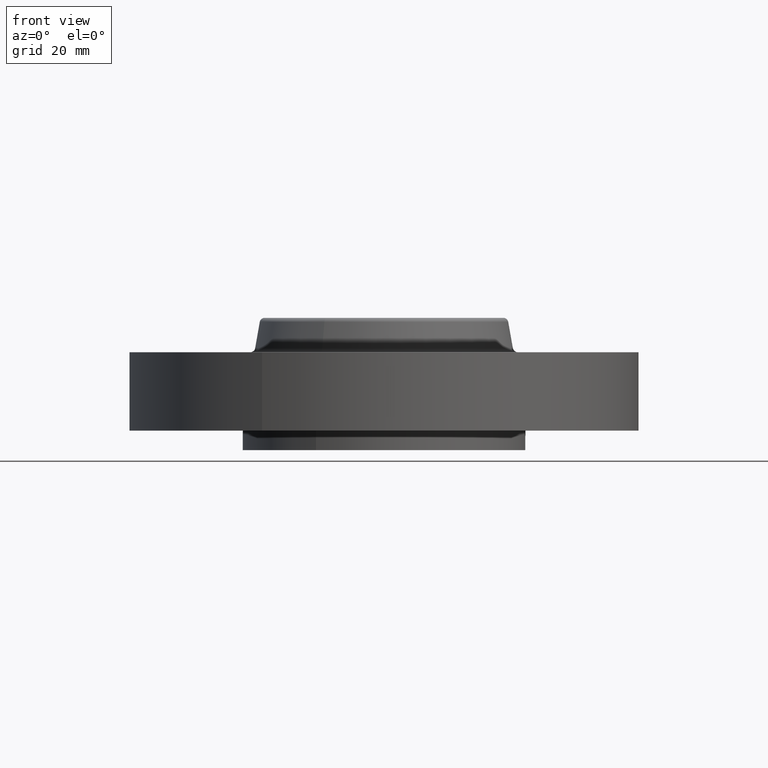
[diagram: clean part render]
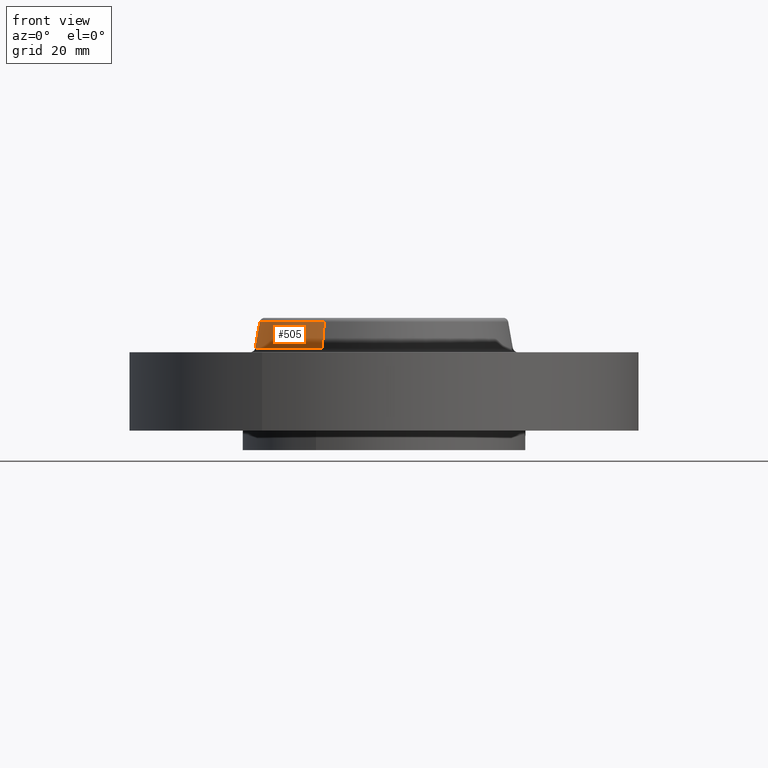
[diagram: same view with one face highlighted and labeled with its STEP entity id]
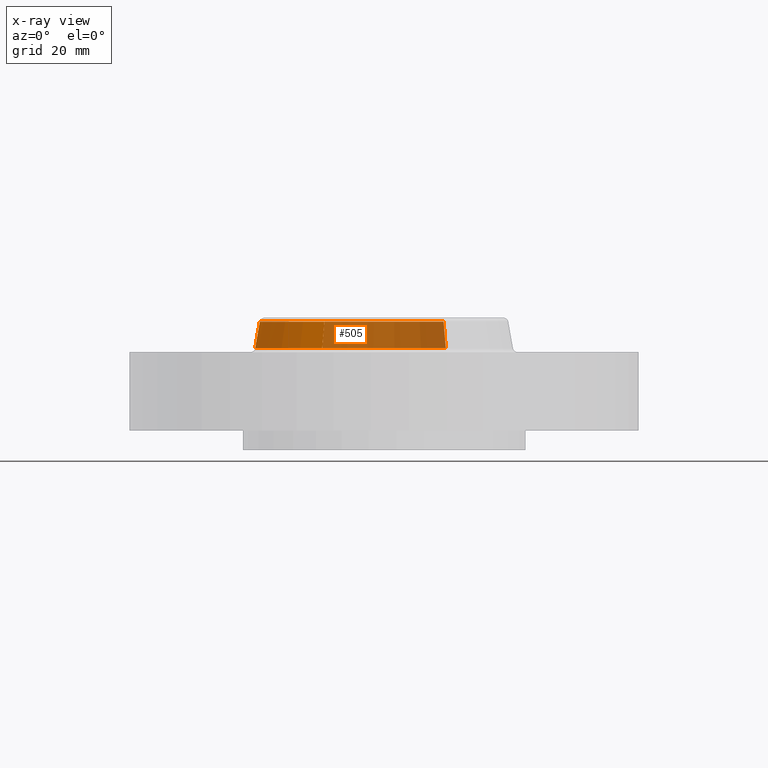
[diagram: x-ray of the same camera — body ghosted, the highlighted face saturated]
A machine part, front view. The second image highlights one B-rep face of the part: STEP entity #505.
The next image is the same camera in x-ray: the body ghosted, the highlighted face saturated — about 65% of this face is hidden behind the body in this view.
In plain terms, the highlighted conical surface has half-angle 10 deg.
Its self-contained STEP definition (entity closure, byte-faithful):
#453=AXIS2_PLACEMENT_3D('Circle Axis2P3D',#451,#452,$) ;
#466=AXIS2_PLACEMENT_3D('Cone Axis2P3D',#463,#464,#465) ;
#496=AXIS2_PLACEMENT_3D('Circle Axis2P3D',#494,#495,$) ;
#424=CARTESIAN_POINT('Vertex',(0.789257894706,1.44472688552,1.04958110934)) ;
#431=CARTESIAN_POINT('Vertex',(-0.789257894706,-1.44472688552,1.04958110934)) ;
#451=CARTESIAN_POINT('Axis2P3D Location',(0.,0.,1.04958110934)) ;
#463=CARTESIAN_POINT('Axis2P3D Location',(0.,0.,1.39041889067)) ;
#468=CARTESIAN_POINT('Line Origine',(0.7748514217,1.41835601357,1.22)) ;
#472=CARTESIAN_POINT('Vertex',(0.760444948694,1.39198514162,1.39041889067)) ;
#479=CARTESIAN_POINT('Vertex',(-0.760444948694,-1.39198514162,1.39041889067)) ;
#482=CARTESIAN_POINT('Line Origine',(-0.7748514217,-1.41835601357,1.22)) ;
#494=CARTESIAN_POINT('Axis2P3D Location',(0.,0.,1.39041889067)) ;
#452=DIRECTION('Axis2P3D Direction',(0.,0.,-0.0393700787402)) ;
#464=DIRECTION('Axis2P3D Direction',(0.,0.,-0.0393700787402)) ;
#465=DIRECTION('Axis2P3D XDirection',(-0.0188750212049,-0.0345504945626,0.)) ;
#469=DIRECTION('Vector Direction',(0.00327761303565,0.00599963041829,-0.03877195878)) ;
#483=DIRECTION('Vector Direction',(-0.00327761303565,-0.00599963041829,-0.03877195878)) ;
#495=DIRECTION('Axis2P3D Direction',(0.,0.,-0.0393700787402)) ;
#470=VECTOR('Line Direction',#469,0.0393700787402) ;
#484=VECTOR('Line Direction',#483,0.0393700787402) ;
#500=ORIENTED_EDGE('',*,*,#455,.F.) ;
#501=ORIENTED_EDGE('',*,*,#486,.T.) ;
#502=ORIENTED_EDGE('',*,*,#498,.T.) ;
#503=ORIENTED_EDGE('',*,*,#474,.F.) ;
#505=ADVANCED_FACE('PartBody',(#504),#467,.T.) ;
#454=CIRCLE('generated circle',#453,1.6462575127) ;
#497=CIRCLE('generated circle',#496,1.5861586158) ;
#467=CONICAL_SURFACE('Cone',#466,1.5861586158,0.174532925199) ;
#455=EDGE_CURVE('',#432,#425,#454,.T.) ;
#474=EDGE_CURVE('',#425,#473,#471,.F.) ;
#486=EDGE_CURVE('',#432,#480,#485,.F.) ;
#498=EDGE_CURVE('',#480,#473,#497,.T.) ;
#499=EDGE_LOOP('',(#500,#501,#502,#503)) ;
#504=FACE_OUTER_BOUND('',#499,.T.) ;
#471=LINE('Line',#468,#470) ;
#485=LINE('Line',#482,#484) ;
#425=VERTEX_POINT('',#424) ;
#432=VERTEX_POINT('',#431) ;
#473=VERTEX_POINT('',#472) ;
#480=VERTEX_POINT('',#479) ;